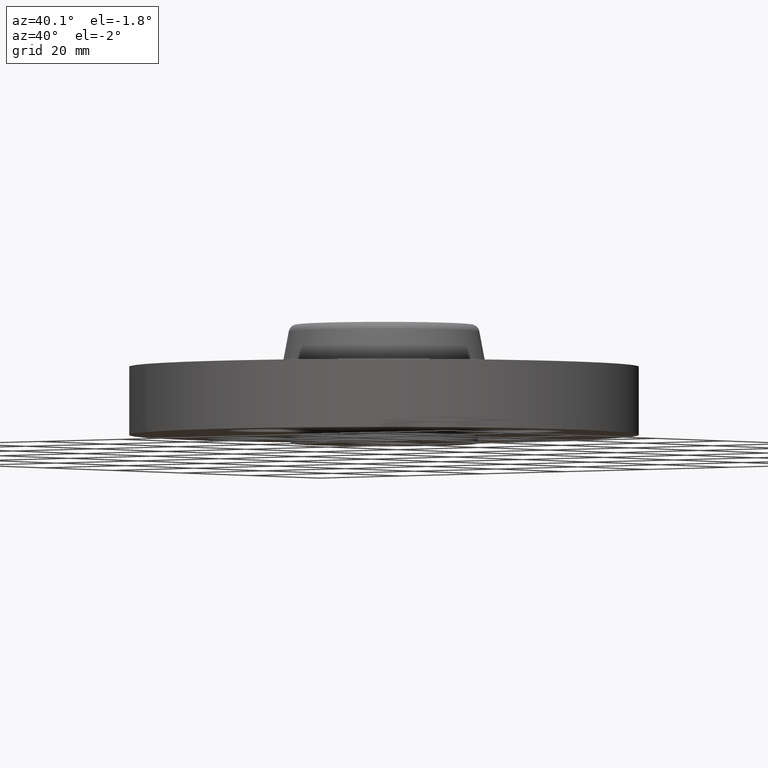
[diagram: clean part render]
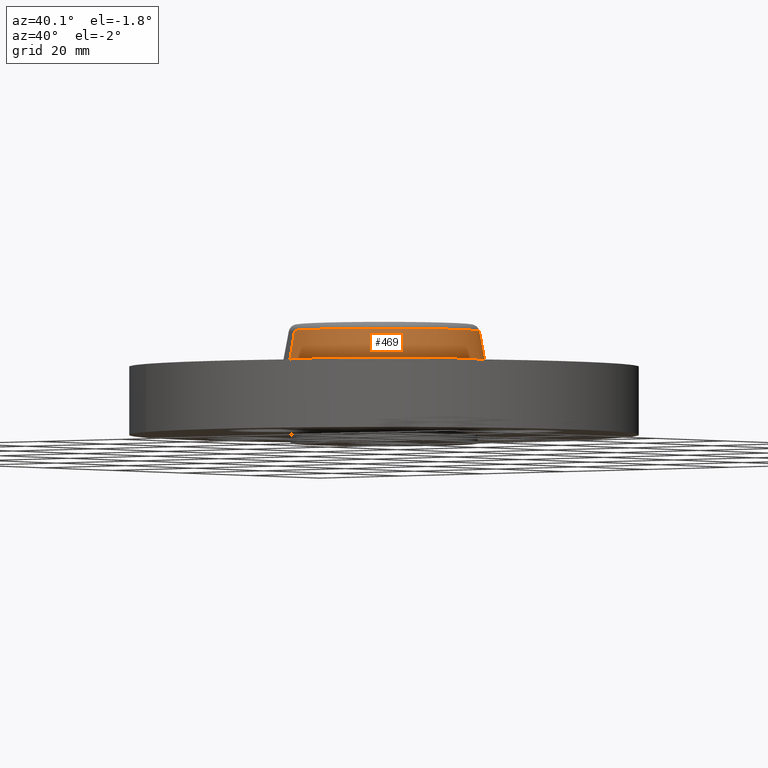
[diagram: same view with one face highlighted and labeled with its STEP entity id]
A machine part, auxiliary view. The second image highlights one B-rep face of the part: STEP entity #469.
In plain terms, the highlighted conical surface has half-angle 10 deg.
Its self-contained STEP definition (entity closure, byte-faithful):
#310=AXIS2_PLACEMENT_3D('Circle Axis2P3D',#308,#309,$) ;
#442=AXIS2_PLACEMENT_3D('Cone Axis2P3D',#439,#440,#441) ;
#446=AXIS2_PLACEMENT_3D('Circle Axis2P3D',#444,#445,$) ;
#308=CARTESIAN_POINT('Axis2P3D Location',(0.,0.,0.760418890663)) ;
#312=CARTESIAN_POINT('Vertex',(0.337554471756,0.617889315958,0.760418890663)) ;
#314=CARTESIAN_POINT('Vertex',(-0.337554471756,-0.617889315958,0.760418890663)) ;
#439=CARTESIAN_POINT('Axis2P3D Location',(0.,0.,0.760418890663)) ;
#444=CARTESIAN_POINT('Axis2P3D Location',(0.,0.,0.549581109342)) ;
#448=CARTESIAN_POINT('Vertex',(0.355377782268,0.65051466701,0.549581109342)) ;
#450=CARTESIAN_POINT('Vertex',(-0.355377782268,-0.65051466701,0.549581109342)) ;
#453=CARTESIAN_POINT('Line Origine',(0.346466127012,0.634201991484,0.655000000001)) ;
#458=CARTESIAN_POINT('Line Origine',(-0.346466127012,-0.634201991484,0.655000000001)) ;
#309=DIRECTION('Axis2P3D Direction',(-0.,0.,-0.0393700787402)) ;
#440=DIRECTION('Axis2P3D Direction',(0.,0.,-0.0393700787402)) ;
#441=DIRECTION('Axis2P3D XDirection',(0.0188750212049,0.0345504945626,0.)) ;
#445=DIRECTION('Axis2P3D Direction',(-0.,0.,-0.0393700787402)) ;
#454=DIRECTION('Vector Direction',(0.00327761303565,0.00599963041827,-0.03877195878)) ;
#459=DIRECTION('Vector Direction',(-0.00327761303565,-0.00599963041827,-0.03877195878)) ;
#455=VECTOR('Line Direction',#454,0.0393700787402) ;
#460=VECTOR('Line Direction',#459,0.0393700787402) ;
#464=ORIENTED_EDGE('',*,*,#452,.F.) ;
#465=ORIENTED_EDGE('',*,*,#457,.T.) ;
#466=ORIENTED_EDGE('',*,*,#316,.T.) ;
#467=ORIENTED_EDGE('',*,*,#462,.F.) ;
#469=ADVANCED_FACE('PartBody',(#468),#443,.T.) ;
#311=CIRCLE('generated circle',#310,0.704081123293) ;
#447=CIRCLE('generated circle',#446,0.741257512693) ;
#443=CONICAL_SURFACE('Cone',#442,0.704081123293,0.174532925199) ;
#316=EDGE_CURVE('',#313,#315,#311,.T.) ;
#452=EDGE_CURVE('',#449,#451,#447,.T.) ;
#457=EDGE_CURVE('',#449,#313,#456,.F.) ;
#462=EDGE_CURVE('',#451,#315,#461,.F.) ;
#463=EDGE_LOOP('',(#464,#465,#466,#467)) ;
#468=FACE_OUTER_BOUND('',#463,.T.) ;
#456=LINE('Line',#453,#455) ;
#461=LINE('Line',#458,#460) ;
#313=VERTEX_POINT('',#312) ;
#315=VERTEX_POINT('',#314) ;
#449=VERTEX_POINT('',#448) ;
#451=VERTEX_POINT('',#450) ;